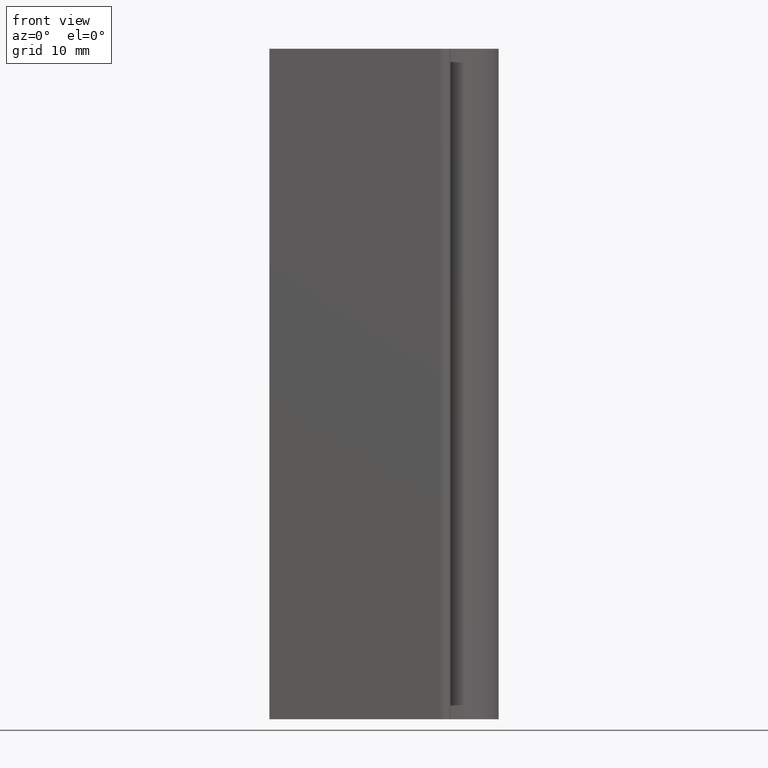
[diagram: clean part render]
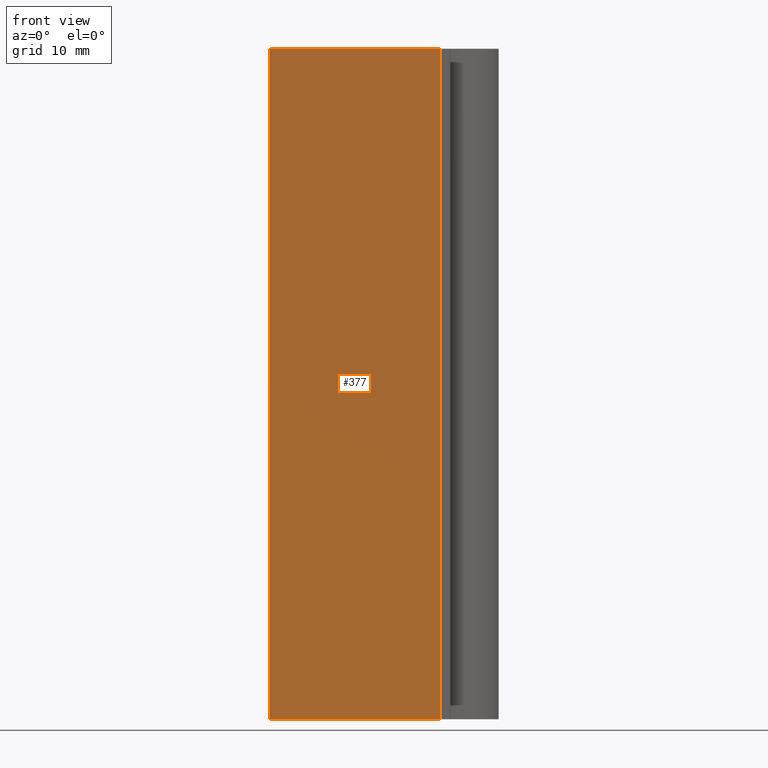
[diagram: same view with one face highlighted and labeled with its STEP entity id]
A machine part, front view. The second image highlights one B-rep face of the part: STEP entity #377.
In plain terms, the highlighted planar face has unit normal (-0, -1, 0).
Its self-contained STEP definition (entity closure, byte-faithful):
#60=FACE_OUTER_BOUND('',#81,.T.);
#81=EDGE_LOOP('',(#297,#298,#299,#300));
#116=LINE('',#683,#153);
#117=LINE('',#686,#154);
#118=LINE('',#688,#155);
#119=LINE('',#689,#156);
#153=VECTOR('',#564,10.);
#154=VECTOR('',#567,10.);
#155=VECTOR('',#568,10.);
#156=VECTOR('',#569,10.);
#188=VERTEX_POINT('',#679);
#189=VERTEX_POINT('',#681);
#190=VERTEX_POINT('',#685);
#191=VERTEX_POINT('',#687);
#234=EDGE_CURVE('',#188,#189,#116,.T.);
#235=EDGE_CURVE('',#190,#188,#117,.T.);
#236=EDGE_CURVE('',#191,#189,#118,.T.);
#237=EDGE_CURVE('',#190,#191,#119,.T.);
#297=ORIENTED_EDGE('',*,*,#235,.T.);
#298=ORIENTED_EDGE('',*,*,#234,.T.);
#299=ORIENTED_EDGE('',*,*,#236,.F.);
#300=ORIENTED_EDGE('',*,*,#237,.F.);
#358=PLANE('',#474);
#377=ADVANCED_FACE('',(#60),#358,.T.);
#474=AXIS2_PLACEMENT_3D('',#684,#565,#566);
#564=DIRECTION('',(0.,0.,1.));
#565=DIRECTION('center_axis',(-8.70763156568756E-17,-1.,0.));
#566=DIRECTION('ref_axis',(1.,-8.70763156568756E-17,0.));
#567=DIRECTION('',(1.,-8.70763156568756E-17,0.));
#568=DIRECTION('',(1.,-8.70763156568756E-17,0.));
#569=DIRECTION('',(0.,0.,1.));
#679=CARTESIAN_POINT('',(1.30000000009255,-14.9999999999731,0.));
#681=CARTESIAN_POINT('',(1.30000000009255,-14.9999999999731,100.));
#683=CARTESIAN_POINT('',(1.30000000009255,-14.9999999999731,0.));
#684=CARTESIAN_POINT('Origin',(-24.1999999999073,-14.9999999999731,0.));
#685=CARTESIAN_POINT('',(-24.1999999999073,-14.9999999999731,0.));
#686=CARTESIAN_POINT('',(-24.1999999999073,-14.9999999999731,0.));
#687=CARTESIAN_POINT('',(-24.1999999999073,-14.9999999999731,100.));
#688=CARTESIAN_POINT('',(-24.1999999999073,-14.9999999999731,100.));
#689=CARTESIAN_POINT('',(-24.1999999999073,-14.9999999999731,0.));